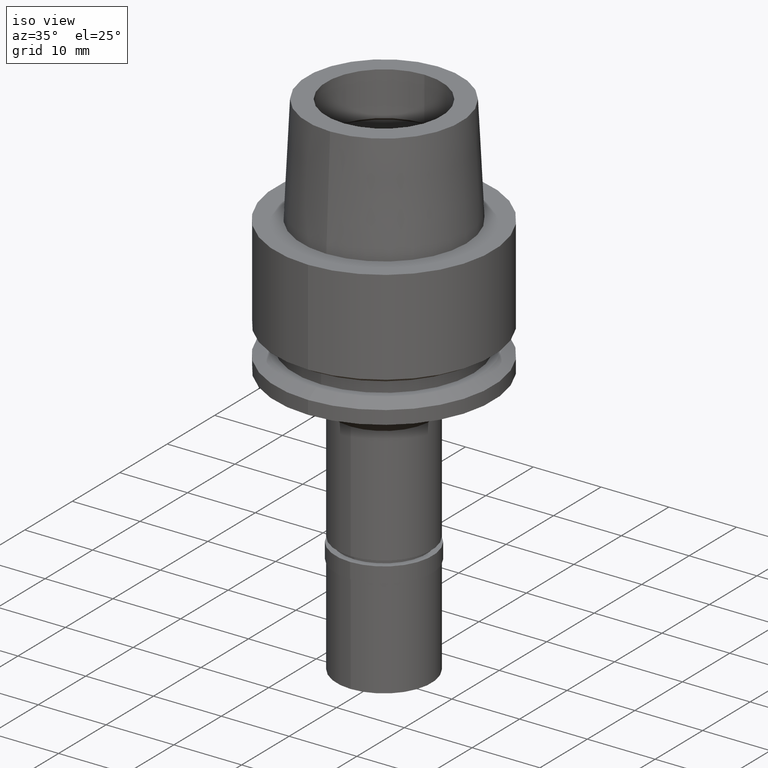
[diagram: clean part render]
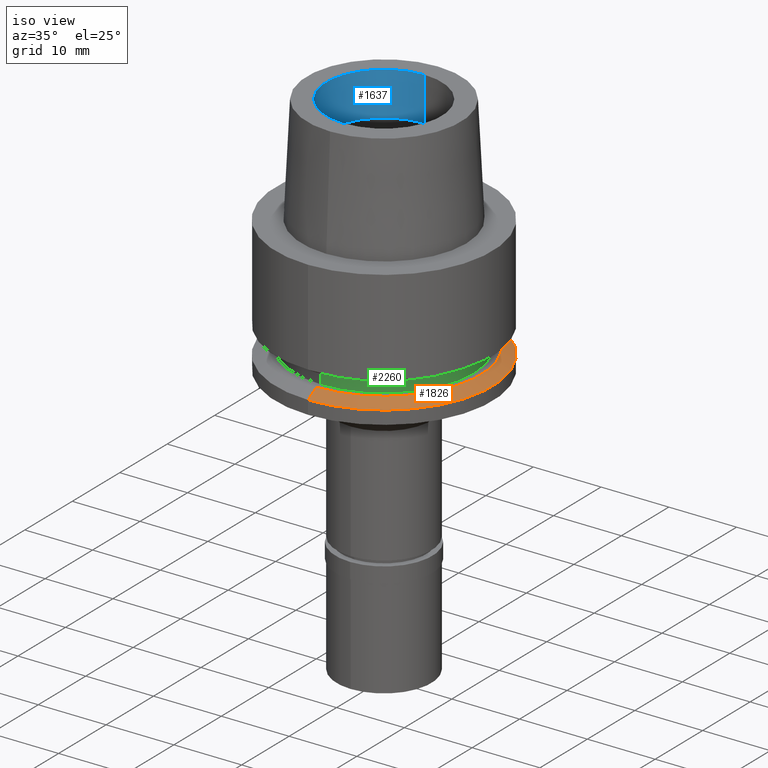
[diagram: same view with three faces highlighted in distinct colors, each labeled with its STEP entity id]
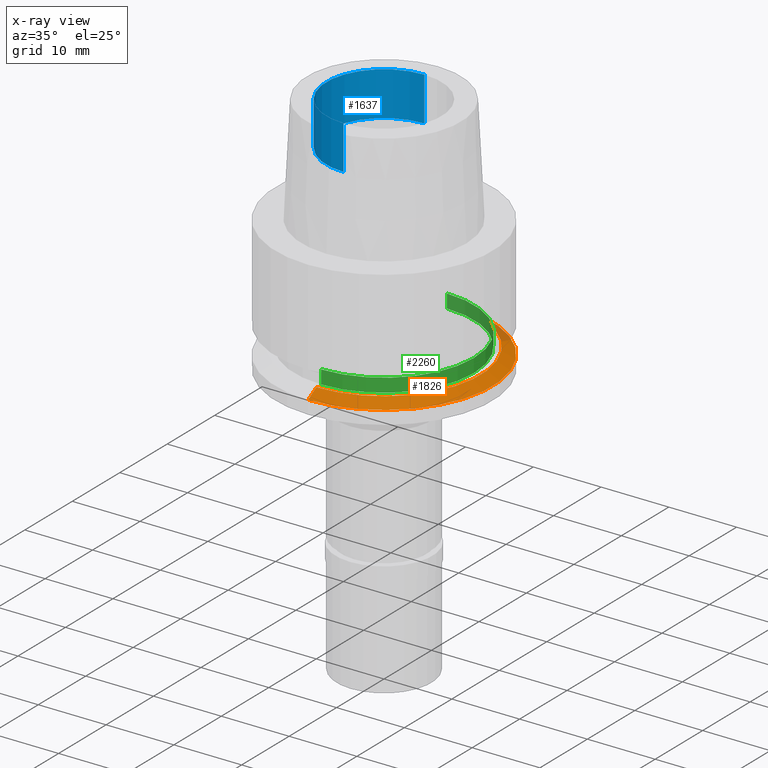
[diagram: x-ray of the same camera — body ghosted, the three highlighted faces saturated]
A machine part, iso view with three faces highlighted in distinct colors.
The next image is the same camera in x-ray (body ghosted, the three faces saturated) — at least one of them is partly hidden behind the body in this view.
Their STEP definitions:

[orange] entity #1826 — the highlighted conical surface has half-angle 60 deg.
#23 = EDGE_CURVE ( 'NONE', #923, #1993, #894, .T. ) ;
#46 = EDGE_CURVE ( 'NONE', #240, #1993, #409, .T. ) ;
#76 = CARTESIAN_POINT ( 'NONE',  ( 0.0000000000000000000, -14.23205080756999941, -17.00000000000000000 ) ) ;
#159 = ORIENTED_EDGE ( 'NONE', *, *, #46, .F. ) ;
#240 = VERTEX_POINT ( 'NONE', #440 ) ;
#262 = ORIENTED_EDGE ( 'NONE', *, *, #2112, .F. ) ;
#279 = ORIENTED_EDGE ( 'NONE', *, *, #23, .T. ) ;
#294 = CARTESIAN_POINT ( 'NONE',  ( 0.0000000000000000000, 14.23205080756999941, -17.00000000000000000 ) ) ;
#409 = CIRCLE ( 'NONE', #1729, 16.00000000000000000 ) ;
#440 = CARTESIAN_POINT ( 'NONE',  ( 0.0000000000000000000, 16.00000000000000000, -18.02072594216000212 ) ) ;
#602 = DIRECTION ( 'NONE',  ( 0.0000000000000000000, 0.8660254037847886499, -0.4999999999993937627 ) ) ;
#622 = DIRECTION ( 'NONE',  ( 0.0000000000000000000, -1.000000000000000000, 0.0000000000000000000 ) ) ;
#742 = EDGE_LOOP ( 'NONE', ( #1713, #279, #159, #262 ) ) ;
#894 = LINE ( 'NONE', #2383, #1108 ) ;
#923 = VERTEX_POINT ( 'NONE', #76 ) ;
#980 = CARTESIAN_POINT ( 'NONE',  ( 0.0000000000000000000, 0.0000000000000000000, -18.02072594216000212 ) ) ;
#1108 = VECTOR ( 'NONE', #1619, 1000.000000000000000 ) ;
#1212 = LINE ( 'NONE', #1856, #2205 ) ;
#1360 = DIRECTION ( 'NONE',  ( 0.0000000000000000000, 0.0000000000000000000, -1.000000000000000000 ) ) ;
#1586 = DIRECTION ( 'NONE',  ( 0.0000000000000000000, 1.000000000000000000, 0.0000000000000000000 ) ) ;
#1619 = DIRECTION ( 'NONE',  ( 0.0000000000000000000, -0.8660254037847886499, -0.4999999999993937627 ) ) ;
#1658 = DIRECTION ( 'NONE',  ( 0.0000000000000000000, 1.000000000000000000, 0.0000000000000000000 ) ) ;
#1676 = CARTESIAN_POINT ( 'NONE',  ( 0.0000000000000000000, 0.0000000000000000000, -17.51036297107999928 ) ) ;
#1682 = AXIS2_PLACEMENT_3D ( 'NONE', #2072, #2476, #1658 ) ;
#1713 = ORIENTED_EDGE ( 'NONE', *, *, #2077, .T. ) ;
#1729 = AXIS2_PLACEMENT_3D ( 'NONE', #980, #1360, #1586 ) ;
#1826 = ADVANCED_FACE ( 'NONE', ( #2120 ), #2650, .T. ) ;
#1856 = CARTESIAN_POINT ( 'NONE',  ( 0.0000000000000000000, 14.23205080756999941, -17.00000000000000000 ) ) ;
#1946 = VERTEX_POINT ( 'NONE', #294 ) ;
#1993 = VERTEX_POINT ( 'NONE', #2396 ) ;
#2072 = CARTESIAN_POINT ( 'NONE',  ( 0.0000000000000000000, 0.0000000000000000000, -17.00000000000000000 ) ) ;
#2077 = EDGE_CURVE ( 'NONE', #1946, #923, #2282, .T. ) ;
#2112 = EDGE_CURVE ( 'NONE', #1946, #240, #1212, .T. ) ;
#2120 = FACE_OUTER_BOUND ( 'NONE', #742, .T. ) ;
#2157 = DIRECTION ( 'NONE',  ( 0.0000000000000000000, 0.0000000000000000000, -1.000000000000000000 ) ) ;
#2205 = VECTOR ( 'NONE', #602, 1000.000000000000000 ) ;
#2282 = CIRCLE ( 'NONE', #1682, 14.23205080756999941 ) ;
#2383 = CARTESIAN_POINT ( 'NONE',  ( 0.0000000000000000000, -14.23205080756999941, -17.00000000000000000 ) ) ;
#2387 = AXIS2_PLACEMENT_3D ( 'NONE', #1676, #2157, #622 ) ;
#2396 = CARTESIAN_POINT ( 'NONE',  ( 0.0000000000000000000, -16.00000000000000000, -18.02072594216000212 ) ) ;
#2476 = DIRECTION ( 'NONE',  ( 0.0000000000000000000, 0.0000000000000000000, -1.000000000000000000 ) ) ;
#2650 = CONICAL_SURFACE ( 'NONE', #2387, 15.11602540378000015, 1.047197551196400456 ) ;

[blue] entity #1637 — the highlighted cylindrical surface (partial cylindrical patch) has radius 8.5 mm, axis along (0, 0, 1).
#130 = VERTEX_POINT ( 'NONE', #2437 ) ;
#141 = DIRECTION ( 'NONE',  ( 0.0000000000000000000, 0.0000000000000000000, -1.000000000000000000 ) ) ;
#168 = ORIENTED_EDGE ( 'NONE', *, *, #354, .F. ) ;
#246 = LINE ( 'NONE', #616, #2133 ) ;
#253 = EDGE_LOOP ( 'NONE', ( #2272, #168, #1559, #304 ) ) ;
#304 = ORIENTED_EDGE ( 'NONE', *, *, #1912, .T. ) ;
#307 = DIRECTION ( 'NONE',  ( 0.0000000000000000000, 0.0000000000000000000, 1.000000000000000000 ) ) ;
#354 = EDGE_CURVE ( 'NONE', #1837, #130, #246, .T. ) ;
#381 = CYLINDRICAL_SURFACE ( 'NONE', #998, 8.500000000000000000 ) ;
#612 = FACE_OUTER_BOUND ( 'NONE', #253, .T. ) ;
#616 = CARTESIAN_POINT ( 'NONE',  ( 0.0000000000000000000, -8.500000000000000000, 9.497350269190000915 ) ) ;
#799 = CARTESIAN_POINT ( 'NONE',  ( 0.0000000000000000000, 8.500000000000000000, 9.497350269190000915 ) ) ;
#957 = CIRCLE ( 'NONE', #2429, 8.500000000000000000 ) ;
#998 = AXIS2_PLACEMENT_3D ( 'NONE', #2673, #2442, #2041 ) ;
#1166 = EDGE_CURVE ( 'NONE', #1837, #2191, #957, .T. ) ;
#1407 = DIRECTION ( 'NONE',  ( 0.0000000000000000000, -1.000000000000000000, 0.0000000000000000000 ) ) ;
#1453 = DIRECTION ( 'NONE',  ( 0.0000000000000000000, 0.0000000000000000000, 1.000000000000000000 ) ) ;
#1559 = ORIENTED_EDGE ( 'NONE', *, *, #1166, .T. ) ;
#1601 = CARTESIAN_POINT ( 'NONE',  ( 0.0000000000000000000, 0.0000000000000000000, 9.497350269190000915 ) ) ;
#1637 = ADVANCED_FACE ( 'NONE', ( #612 ), #381, .F. ) ;
#1837 = VERTEX_POINT ( 'NONE', #2549 ) ;
#1912 = EDGE_CURVE ( 'NONE', #2191, #2234, #2436, .T. ) ;
#2041 = DIRECTION ( 'NONE',  ( 0.0000000000000000000, 1.000000000000000000, 0.0000000000000000000 ) ) ;
#2133 = VECTOR ( 'NONE', #1453, 1000.000000000000000 ) ;
#2149 = EDGE_CURVE ( 'NONE', #2234, #130, #2367, .T. ) ;
#2179 = VECTOR ( 'NONE', #307, 1000.000000000000000 ) ;
#2189 = CARTESIAN_POINT ( 'NONE',  ( 0.0000000000000000000, 8.500000000000000000, 9.497350269190000915 ) ) ;
#2191 = VERTEX_POINT ( 'NONE', #799 ) ;
#2234 = VERTEX_POINT ( 'NONE', #2258 ) ;
#2258 = CARTESIAN_POINT ( 'NONE',  ( 0.0000000000000000000, 8.500000000000000000, 16.00000000000000000 ) ) ;
#2272 = ORIENTED_EDGE ( 'NONE', *, *, #2149, .T. ) ;
#2302 = DIRECTION ( 'NONE',  ( 0.0000000000000000000, 0.0000000000000000000, 1.000000000000000000 ) ) ;
#2367 = CIRCLE ( 'NONE', #2499, 8.500000000000000000 ) ;
#2429 = AXIS2_PLACEMENT_3D ( 'NONE', #1601, #141, #1407 ) ;
#2436 = LINE ( 'NONE', #2189, #2179 ) ;
#2437 = CARTESIAN_POINT ( 'NONE',  ( 0.0000000000000000000, -8.500000000000000000, 16.00000000000000000 ) ) ;
#2442 = DIRECTION ( 'NONE',  ( 0.0000000000000000000, 0.0000000000000000000, 1.000000000000000000 ) ) ;
#2499 = AXIS2_PLACEMENT_3D ( 'NONE', #2667, #2302, #2681 ) ;
#2549 = CARTESIAN_POINT ( 'NONE',  ( 0.0000000000000000000, -8.500000000000000000, 9.497350269190000915 ) ) ;
#2667 = CARTESIAN_POINT ( 'NONE',  ( 0.0000000000000000000, 0.0000000000000000000, 16.00000000000000000 ) ) ;
#2673 = CARTESIAN_POINT ( 'NONE',  ( 0.0000000000000000000, 0.0000000000000000000, -59.60000000000000142 ) ) ;
#2681 = DIRECTION ( 'NONE',  ( 0.0000000000000000000, 1.000000000000000000, 0.0000000000000000000 ) ) ;

[green] entity #2260 — the highlighted cylindrical surface (partial cylindrical patch) has radius 13.25 mm, axis along (0, 0, 1).
#25 = VECTOR ( 'NONE', #1060, 1000.000000000000000 ) ;
#84 = VERTEX_POINT ( 'NONE', #153 ) ;
#97 = CARTESIAN_POINT ( 'NONE',  ( 0.0000000000000000000, 0.0000000000000000000, -17.00000000000000000 ) ) ;
#153 = CARTESIAN_POINT ( 'NONE',  ( 0.0000000000000000000, -13.25000000000000000, -15.00000000000000000 ) ) ;
#212 = CARTESIAN_POINT ( 'NONE',  ( 0.0000000000000000000, 13.25000000000000000, -15.00000000000000000 ) ) ;
#215 = CARTESIAN_POINT ( 'NONE',  ( 0.0000000000000000000, -13.25000000000000000, -17.00000000000000000 ) ) ;
#232 = AXIS2_PLACEMENT_3D ( 'NONE', #2498, #654, #1269 ) ;
#243 = EDGE_CURVE ( 'NONE', #283, #84, #1065, .T. ) ;
#273 = DIRECTION ( 'NONE',  ( 0.0000000000000000000, 0.0000000000000000000, -1.000000000000000000 ) ) ;
#283 = VERTEX_POINT ( 'NONE', #422 ) ;
#339 = VERTEX_POINT ( 'NONE', #215 ) ;
#372 = DIRECTION ( 'NONE',  ( 0.0000000000000000000, 0.0000000000000000000, 1.000000000000000000 ) ) ;
#394 = DIRECTION ( 'NONE',  ( 0.0000000000000000000, 1.000000000000000000, 0.0000000000000000000 ) ) ;
#422 = CARTESIAN_POINT ( 'NONE',  ( 0.0000000000000000000, 13.25000000000000000, -15.00000000000000000 ) ) ;
#441 = AXIS2_PLACEMENT_3D ( 'NONE', #1405, #372, #394 ) ;
#479 = DIRECTION ( 'NONE',  ( 0.0000000000000000000, -1.000000000000000000, 0.0000000000000000000 ) ) ;
#499 = DIRECTION ( 'NONE',  ( 0.0000000000000000000, 0.0000000000000000000, 1.000000000000000000 ) ) ;
#522 = EDGE_CURVE ( 'NONE', #84, #339, #671, .T. ) ;
#654 = DIRECTION ( 'NONE',  ( 0.0000000000000000000, 0.0000000000000000000, -1.000000000000000000 ) ) ;
#671 = LINE ( 'NONE', #689, #2293 ) ;
#689 = CARTESIAN_POINT ( 'NONE',  ( 0.0000000000000000000, -13.25000000000000000, -15.00000000000000000 ) ) ;
#790 = ORIENTED_EDGE ( 'NONE', *, *, #522, .T. ) ;
#796 = EDGE_CURVE ( 'NONE', #283, #2658, #1038, .T. ) ;
#931 = EDGE_CURVE ( 'NONE', #339, #2658, #2381, .T. ) ;
#1038 = LINE ( 'NONE', #212, #25 ) ;
#1060 = DIRECTION ( 'NONE',  ( 0.0000000000000000000, 0.0000000000000000000, -1.000000000000000000 ) ) ;
#1065 = CIRCLE ( 'NONE', #232, 13.25000000000000000 ) ;
#1146 = CARTESIAN_POINT ( 'NONE',  ( 0.0000000000000000000, 13.25000000000000000, -17.00000000000000000 ) ) ;
#1179 = ORIENTED_EDGE ( 'NONE', *, *, #243, .T. ) ;
#1210 = AXIS2_PLACEMENT_3D ( 'NONE', #97, #499, #479 ) ;
#1242 = ORIENTED_EDGE ( 'NONE', *, *, #931, .T. ) ;
#1269 = DIRECTION ( 'NONE',  ( 0.0000000000000000000, 1.000000000000000000, 0.0000000000000000000 ) ) ;
#1405 = CARTESIAN_POINT ( 'NONE',  ( 0.0000000000000000000, 0.0000000000000000000, -59.60000000000000142 ) ) ;
#1441 = CYLINDRICAL_SURFACE ( 'NONE', #441, 13.25000000000000000 ) ;
#1590 = EDGE_LOOP ( 'NONE', ( #1179, #790, #1242, #2263 ) ) ;
#2243 = FACE_OUTER_BOUND ( 'NONE', #1590, .T. ) ;
#2260 = ADVANCED_FACE ( 'NONE', ( #2243 ), #1441, .T. ) ;
#2263 = ORIENTED_EDGE ( 'NONE', *, *, #796, .F. ) ;
#2293 = VECTOR ( 'NONE', #273, 1000.000000000000000 ) ;
#2381 = CIRCLE ( 'NONE', #1210, 13.25000000000000000 ) ;
#2498 = CARTESIAN_POINT ( 'NONE',  ( 0.0000000000000000000, 0.0000000000000000000, -15.00000000000000000 ) ) ;
#2658 = VERTEX_POINT ( 'NONE', #1146 ) ;